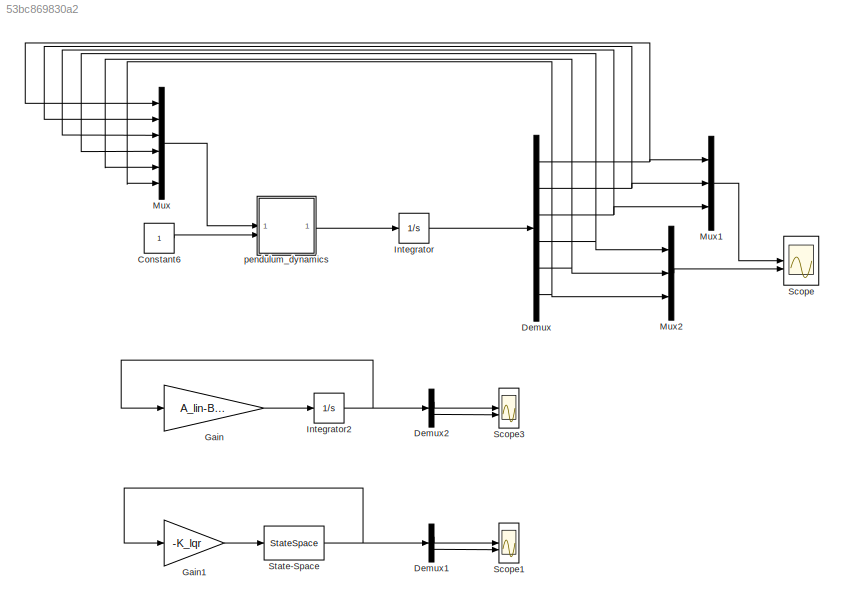
MODEL slx_53bc869830a2
KIND model
CONFIG AbsTol = auto
CONFIG EnableMultiTasking = off
CONFIG FixedStep = auto
CONFIG MaxStep = 1e-4
CONFIG MinStep = auto
CONFIG RelTol = 1e-3
CONFIG SampleTimeConstraint = Unconstrained
CONFIG SolverName = VariableStepAuto
CONFIG StartTime = 0.0
CONFIG StopTime = 10
BLOCK [Constant] Constant6
BLOCK [Demux] Demux
  Outputs = 6
BLOCK [Demux] Demux1
  Outputs = 2
BLOCK [Demux] Demux2
  Outputs = 2
BLOCK [Gain] Gain
  Gain = A_lin-B_lin*K
  Multiplication = Matrix(K*u)
BLOCK [Gain] Gain1
  Gain = -K_lqr
  Multiplication = Matrix(K*u)
BLOCK [Integrator] Integrator
  InitialCondition = x0
BLOCK [Integrator] Integrator2
  InitialCondition = x0
BLOCK [Mux] Mux
  DisplayOption = bar
  Inputs = 6
BLOCK [Mux] Mux1
  DisplayOption = bar
  Inputs = 3
BLOCK [Mux] Mux2
  DisplayOption = bar
  Inputs = 3
BLOCK [Scope] Scope
  Floating = off
  NumInputPorts = 2
  ScopeSpecificationString = Simulink.scopes.TimeScopeBlockCfg('CurrentConfiguration', extmgr.ConfigurationSet(extmgr.Configuration('Core','General UI',true,'FigureColor',[1 1 1]),extmgr.Configuration('Core','Source UI',true),extmgr.Configuration('Sources','WiredSimulink',true),extmgr.Configuration('Visuals','Time Domain',true,'SerializedDisplays',{struct('MinYLimReal','-2.14697','MaxYLimReal','8.18859','YLabelReal','','MinYL...<+2501ch>
BLOCK [Scope] Scope1
  Floating = off
  NumInputPorts = 2
  ScopeSpecificationString = Simulink.scopes.TimeScopeBlockCfg('CurrentConfiguration', extmgr.ConfigurationSet(extmgr.Configuration('Core','General UI',true,'FigureColor',[1 1 1]),extmgr.Configuration('Core','Source UI',true),extmgr.Configuration('Sources','WiredSimulink',true,'DataLoggingVariableName','ScopeData2'),extmgr.Configuration('Visuals','Time Domain',true,'SerializedDisplays',{struct('MinYLimReal','-0.01717','MaxYLi...<+2478ch>
BLOCK [Scope] Scope3
  Floating = off
  NumInputPorts = 2
  ScopeSpecificationString = Simulink.scopes.TimeScopeBlockCfg('CurrentConfiguration', extmgr.ConfigurationSet(extmgr.Configuration('Core','General UI',true,'FigureColor',[1 1 1]),extmgr.Configuration('Core','Source UI',true),extmgr.Configuration('Sources','WiredSimulink',true,'DataLoggingVariableName','ScopeData3'),extmgr.Configuration('Visuals','Time Domain',true,'SerializedDisplays',{struct('MinYLimReal','-0.05527','MaxYLi...<+2491ch>
BLOCK [StateSpace] State-Space
  A = A_lin
  B = B_lin
  C = eye(6)
  D = [0; 0; 0; 0; 0; 0;]
  InitialCondition = x0
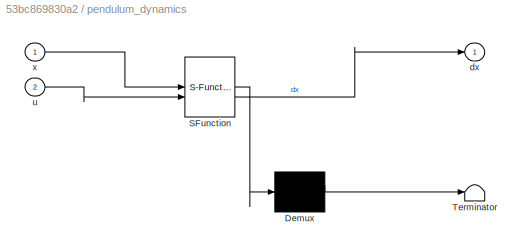
BLOCK [SubSystem] pendulum_dynamics
  ErrorFcn = Stateflow.Translate.translate
  PermitHierarchicalResolution = ExplicitOnly
  SFBlockType = MATLAB Function
  TreatAsAtomicUnit = on
BLOCK [Demux] pendulum_dynamics/ Demux 
  Outputs = 1
BLOCK [S-Function] pendulum_dynamics/ SFunction 
  EnableBusSupport = on
  FunctionName = sf_sfun
  PortCounts = [2 2]
  SFcnIsStateOwnerBlock = off
  SFunctionDeploymentMode = off
  Tag = Stateflow S-Function 2
BLOCK [Terminator] pendulum_dynamics/ Terminator 
BLOCK [Outport] pendulum_dynamics/dx
BLOCK [Inport] pendulum_dynamics/u
  Port = 2
BLOCK [Inport] pendulum_dynamics/x
LINE Constant6:1 -> pendulum_dynamics:2
LINE Demux1:1 -> Scope1:1
LINE Demux1:2 -> Scope1:2
LINE Demux2:1 -> Scope3:1
LINE Demux2:2 -> Scope3:2
NET Demux:1 -> Mux1:1, Mux:1
NET Demux:2 -> Mux1:2, Mux:2
NET Demux:3 -> Mux1:3, Mux:3
NET Demux:4 -> Mux2:1, Mux:4
NET Demux:5 -> Mux2:2, Mux:5
NET Demux:6 -> Mux2:3, Mux:6
LINE Gain1:1 -> State-Space:1
LINE Gain:1 -> Integrator2:1
NET Integrator2:1 -> Demux2:1, Gain:1
LINE Integrator:1 -> Demux:1
LINE Mux1:1 -> Scope:1
LINE Mux2:1 -> Scope:2
LINE Mux:1 -> pendulum_dynamics:1
NET State-Space:1 -> Demux1:1, Gain1:1
LINE pendulum_dynamics:1 -> Integrator:1
note: NET lines group one-source signal fan-out (src -> all destinations, sorted); 1:1 wires keep LINE
CHART pendulum_dynamics states=1 transitions=1
  STATE_LABEL 'eML_blk_kernel()'
  STATE_LABEL 'SCRIPT:\nfunction dx = fcn(x, u)\n    dx = f_x(x, u);\nend'
CHART  states=0 transitions=0
